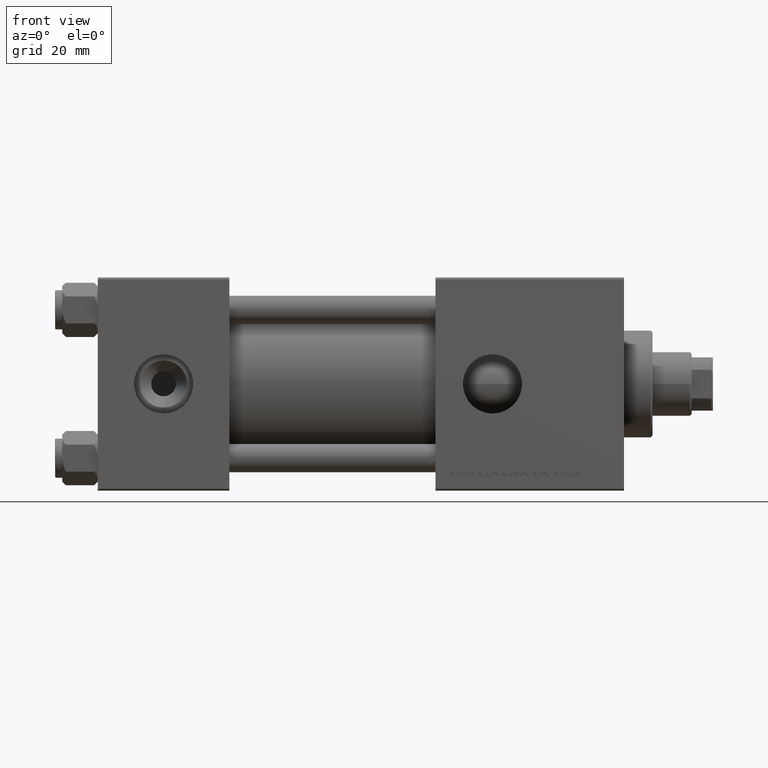
[diagram: clean part render]
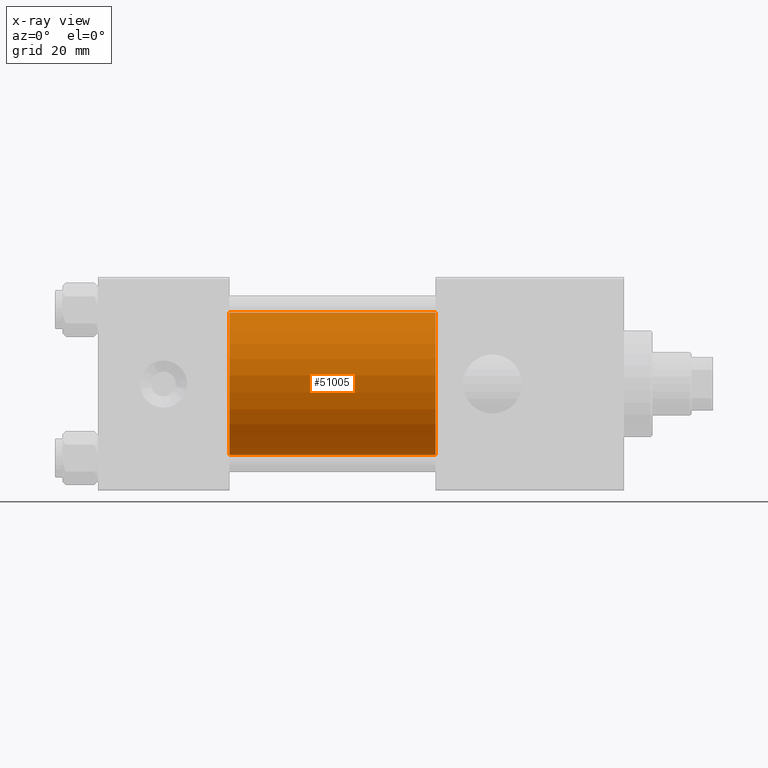
[diagram: x-ray — body ghosted, one internal face saturated and labeled with its STEP entity id]
A machine part, front view, then the same camera in x-ray: the body is ghosted and one INTERNAL B-rep face — a face not visible from any outside direction — is saturated and labeled: STEP entity #51005.
In plain terms, the highlighted cylindrical surface (partial cylindrical patch) has radius 20 mm, axis along (-1, -0, -0).
Its self-contained STEP definition (entity closure, byte-faithful):
#729 = VERTEX_POINT ( 'NONE', #34708 ) ;
#2411 = LINE ( 'NONE', #50528, #28869 ) ;
#2574 = DIRECTION ( 'NONE',  ( 0.000000000000000000, 0.000000000000000000, 1.000000000000000000 ) ) ;
#2876 = DIRECTION ( 'NONE',  ( 0.000000000000000000, 0.000000000000000000, -1.000000000000000000 ) ) ;
#5600 = CARTESIAN_POINT ( 'NONE',  ( 95.00000000000000000, -2.602085213965210642E-15, 0.000000000000000000 ) ) ;
#5978 = EDGE_LOOP ( 'NONE', ( #19255, #15119, #25551, #6375 ) ) ;
#6264 = CARTESIAN_POINT ( 'NONE',  ( 95.00000000000000000, -2.602085213965210642E-15, 0.000000000000000000 ) ) ;
#6375 = ORIENTED_EDGE ( 'NONE', *, *, #27155, .F. ) ;
#6520 = DIRECTION ( 'NONE',  ( -1.000000000000000000, -0.000000000000000000, -0.000000000000000000 ) ) ;
#6629 = DIRECTION ( 'NONE',  ( -1.000000000000000000, -0.000000000000000000, -0.000000000000000000 ) ) ;
#11432 = CARTESIAN_POINT ( 'NONE',  ( 37.00000000000000000, -2.602085213965210642E-15, 20.00000000000000000 ) ) ;
#12819 = AXIS2_PLACEMENT_3D ( 'NONE', #5600, #37108, #20978 ) ;
#15119 = ORIENTED_EDGE ( 'NONE', *, *, #24516, .T. ) ;
#17774 = VERTEX_POINT ( 'NONE', #11432 ) ;
#18284 = EDGE_CURVE ( 'NONE', #17774, #34301, #43803, .T. ) ;
#18463 = VERTEX_POINT ( 'NONE', #33284 ) ;
#19255 = ORIENTED_EDGE ( 'NONE', *, *, #24463, .T. ) ;
#20978 = DIRECTION ( 'NONE',  ( 0.000000000000000000, 0.000000000000000000, -1.000000000000000000 ) ) ;
#24463 = EDGE_CURVE ( 'NONE', #729, #18463, #38137, .T. ) ;
#24516 = EDGE_CURVE ( 'NONE', #18463, #34301, #2411, .T. ) ;
#25551 = ORIENTED_EDGE ( 'NONE', *, *, #18284, .F. ) ;
#26971 = CARTESIAN_POINT ( 'NONE',  ( 37.00000000000000000, -2.602085213965210642E-15, 0.000000000000000000 ) ) ;
#27155 = EDGE_CURVE ( 'NONE', #729, #17774, #46459, .T. ) ;
#28869 = VECTOR ( 'NONE', #6629, 1000.000000000000000 ) ;
#30364 = CYLINDRICAL_SURFACE ( 'NONE', #34697, 20.00000000000000000 ) ;
#33284 = CARTESIAN_POINT ( 'NONE',  ( 95.00000000000000000, -1.527916156705046464E-16, -20.00000000000000000 ) ) ;
#34301 = VERTEX_POINT ( 'NONE', #36338 ) ;
#34697 = AXIS2_PLACEMENT_3D ( 'NONE', #6264, #46991, #2574 ) ;
#34708 = CARTESIAN_POINT ( 'NONE',  ( 95.00000000000000000, -2.602085213965210642E-15, 20.00000000000000000 ) ) ;
#36338 = CARTESIAN_POINT ( 'NONE',  ( 37.00000000000000000, -1.527916156705046464E-16, -20.00000000000000000 ) ) ;
#37108 = DIRECTION ( 'NONE',  ( 1.000000000000000000, 0.000000000000000000, 0.000000000000000000 ) ) ;
#38137 = CIRCLE ( 'NONE', #12819, 20.00000000000000000 ) ;
#38811 = FACE_OUTER_BOUND ( 'NONE', #5978, .T. ) ;
#42750 = CARTESIAN_POINT ( 'NONE',  ( 95.00000000000000000, -2.602085213965210642E-15, 20.00000000000000000 ) ) ;
#43085 = DIRECTION ( 'NONE',  ( 1.000000000000000000, 0.000000000000000000, 0.000000000000000000 ) ) ;
#43803 = CIRCLE ( 'NONE', #49697, 20.00000000000000000 ) ;
#46459 = LINE ( 'NONE', #42750, #49178 ) ;
#46991 = DIRECTION ( 'NONE',  ( -1.000000000000000000, -0.000000000000000000, -0.000000000000000000 ) ) ;
#49178 = VECTOR ( 'NONE', #6520, 1000.000000000000000 ) ;
#49697 = AXIS2_PLACEMENT_3D ( 'NONE', #26971, #43085, #2876 ) ;
#50528 = CARTESIAN_POINT ( 'NONE',  ( 95.00000000000000000, -1.527916156705046464E-16, -20.00000000000000000 ) ) ;
#51005 = ADVANCED_FACE ( 'NONE', ( #38811 ), #30364, .F. ) ;